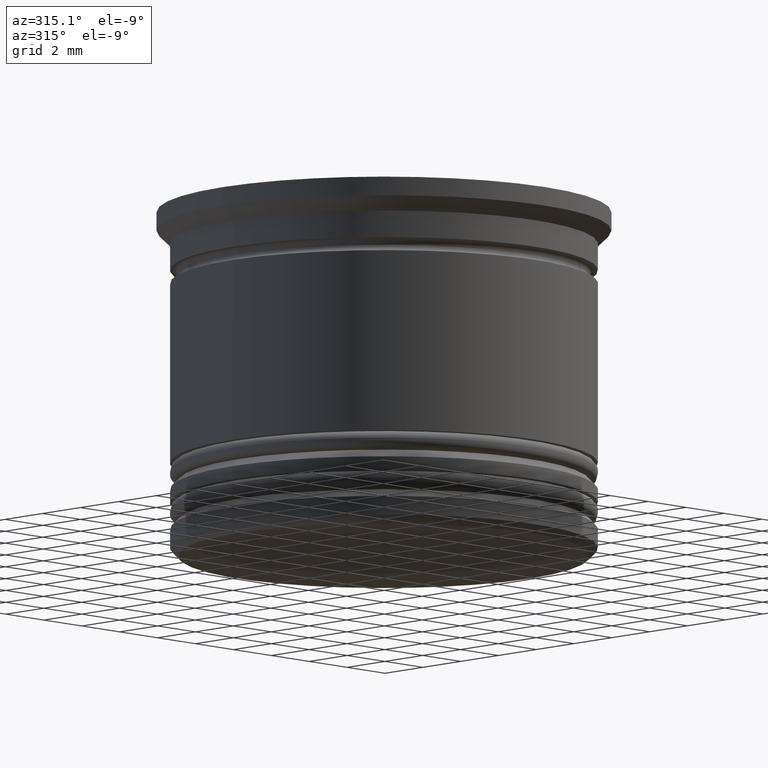
[diagram: clean part render]
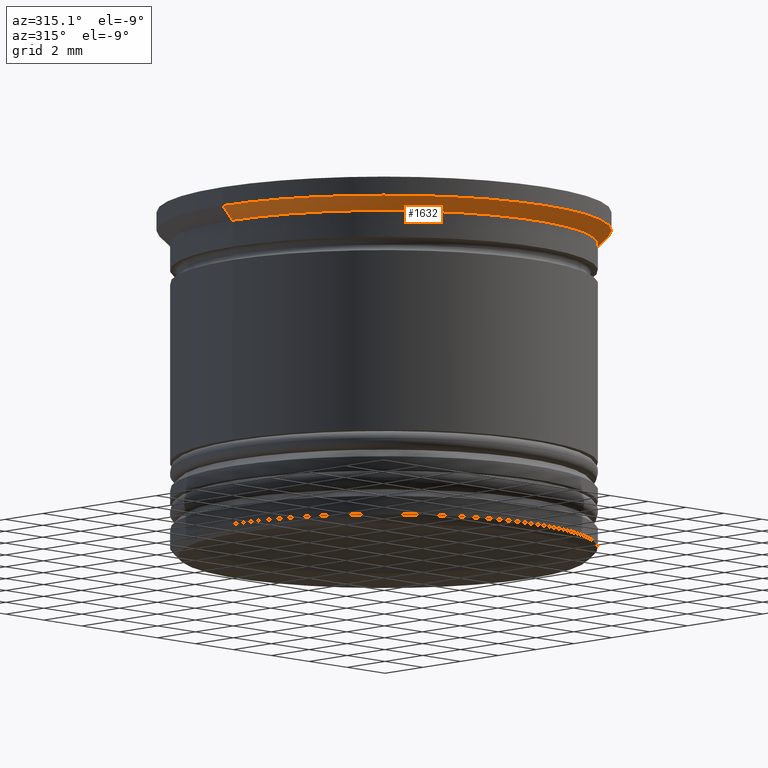
[diagram: same view with one face highlighted and labeled with its STEP entity id]
A machine part, auxiliary view. The second image highlights one B-rep face of the part: STEP entity #1632.
In plain terms, the highlighted conical surface has half-angle 45 deg.
Its self-contained STEP definition (entity closure, byte-faithful):
#16 = ORIENTED_EDGE ( 'NONE', *, *, #344, .T. ) ;
#48 = DIRECTION ( 'NONE',  ( -0.000000000000000000, -0.000000000000000000, 1.000000000000000000 ) ) ;
#130 = LINE ( 'NONE', #159, #1314 ) ;
#159 = CARTESIAN_POINT ( 'NONE',  ( -8.500000000000000000, 1.040949779275250140E-15, -0.6999999999999952927 ) ) ;
#187 = AXIS2_PLACEMENT_3D ( 'NONE', #1842, #1678, #1392 ) ;
#307 = AXIS2_PLACEMENT_3D ( 'NONE', #654, #1401, #1426 ) ;
#316 = ORIENTED_EDGE ( 'NONE', *, *, #791, .F. ) ;
#344 = EDGE_CURVE ( 'NONE', #1443, #1496, #921, .T. ) ;
#393 = CARTESIAN_POINT ( 'NONE',  ( 7.999999999999998224, 0.000000000000000000, -1.199999999999999289 ) ) ;
#489 = EDGE_CURVE ( 'NONE', #1443, #1369, #130, .T. ) ;
#623 = FACE_OUTER_BOUND ( 'NONE', #1802, .T. ) ;
#654 = CARTESIAN_POINT ( 'NONE',  ( 0.000000000000000000, 0.000000000000000000, -1.199999999999999289 ) ) ;
#739 = VECTOR ( 'NONE', #1004, 1000.000000000000114 ) ;
#791 = EDGE_CURVE ( 'NONE', #1369, #1928, #1897, .T. ) ;
#921 = CIRCLE ( 'NONE', #307, 7.999999999999998224 ) ;
#946 = DIRECTION ( 'NONE',  ( -1.000000000000000000, 0.000000000000000000, 0.000000000000000000 ) ) ;
#959 = CONICAL_SURFACE ( 'NONE', #187, 8.500000000000000000, 0.7853981633974517207 ) ;
#965 = CARTESIAN_POINT ( 'NONE',  ( 8.500000000000000000, 0.000000000000000000, -0.6999999999999952927 ) ) ;
#1004 = DIRECTION ( 'NONE',  ( 0.7071067811865500152, 0.000000000000000000, 0.7071067811865451302 ) ) ;
#1019 = AXIS2_PLACEMENT_3D ( 'NONE', #1757, #48, #946 ) ;
#1035 = CARTESIAN_POINT ( 'NONE',  ( 8.500000000000000000, 0.000000000000000000, -0.6999999999999952927 ) ) ;
#1102 = EDGE_CURVE ( 'NONE', #1496, #1928, #1155, .T. ) ;
#1155 = LINE ( 'NONE', #965, #739 ) ;
#1232 = DIRECTION ( 'NONE',  ( -0.7071067811865500152, 8.659560562354963673E-17, 0.7071067811865451302 ) ) ;
#1314 = VECTOR ( 'NONE', #1232, 1000.000000000000114 ) ;
#1369 = VERTEX_POINT ( 'NONE', #1608 ) ;
#1392 = DIRECTION ( 'NONE',  ( 1.000000000000000000, 0.000000000000000000, 0.000000000000000000 ) ) ;
#1401 = DIRECTION ( 'NONE',  ( -0.000000000000000000, -0.000000000000000000, 1.000000000000000000 ) ) ;
#1403 = ORIENTED_EDGE ( 'NONE', *, *, #489, .F. ) ;
#1426 = DIRECTION ( 'NONE',  ( 1.000000000000000000, 0.000000000000000000, 0.000000000000000000 ) ) ;
#1443 = VERTEX_POINT ( 'NONE', #1535 ) ;
#1460 = ORIENTED_EDGE ( 'NONE', *, *, #1102, .T. ) ;
#1496 = VERTEX_POINT ( 'NONE', #393 ) ;
#1535 = CARTESIAN_POINT ( 'NONE',  ( -7.999999999999998224, 9.797174393178823685E-16, -1.199999999999999289 ) ) ;
#1608 = CARTESIAN_POINT ( 'NONE',  ( -8.500000000000000000, 1.040949779275250140E-15, -0.6999999999999952927 ) ) ;
#1632 = ADVANCED_FACE ( 'NONE', ( #623 ), #959, .T. ) ;
#1678 = DIRECTION ( 'NONE',  ( -0.000000000000000000, -0.000000000000000000, 1.000000000000000000 ) ) ;
#1757 = CARTESIAN_POINT ( 'NONE',  ( 0.000000000000000000, 0.000000000000000000, -0.6999999999999952927 ) ) ;
#1802 = EDGE_LOOP ( 'NONE', ( #1403, #16, #1460, #316 ) ) ;
#1842 = CARTESIAN_POINT ( 'NONE',  ( 0.000000000000000000, 0.000000000000000000, -0.6999999999999952927 ) ) ;
#1897 = CIRCLE ( 'NONE', #1019, 8.500000000000000000 ) ;
#1928 = VERTEX_POINT ( 'NONE', #1035 ) ;